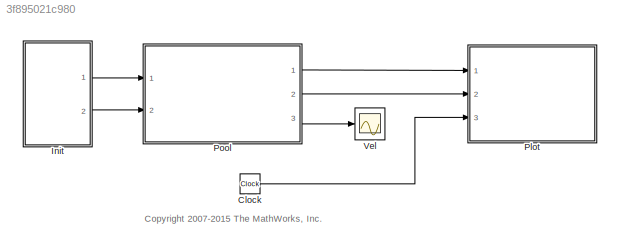
MODEL slx_3f895021c980
KIND model
CONFIG AbsTol = auto
CONFIG EnableMultiTasking = on
CONFIG FixedStep = auto
CONFIG MaxStep = .1
CONFIG MinStep = auto
CONFIG RelTol = 1e-3
CONFIG SampleTimeConstraint = Unconstrained
CONFIG Solver = ode45
CONFIG SolverName = ode45
CONFIG StartTime = 0.0
CONFIG StopTime = 10
WORKSPACE source: MATLAB code (in-file)
WORKSPACE kp = 100000
WORKSPACE kv = 40
WORKSPACE kfriction = 10
WORKSPACE tableLen = 44
WORKSPACE tableWidth = 22
WORKSPACE ballRadius = 1
WORKSPACE N = 16
BLOCK [Clock] Clock
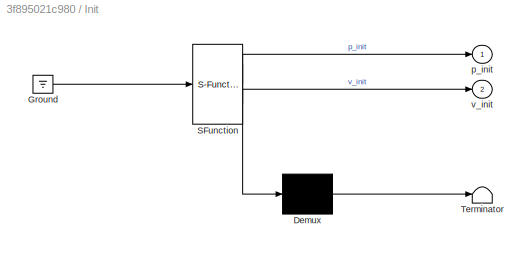
BLOCK [SubSystem] Init
  ErrorFcn = Stateflow.Translate.translate
  PermitHierarchicalResolution = ExplicitOnly
  Ports = [0, 2]
  RequestExecContextInheritance = off
  SFBlockType = Chart
  TreatAsAtomicUnit = on
  Variant = off
BLOCK [Demux] Init/ Demux 
  Outputs = 1
  Ports = [1, 1]
BLOCK [Ground] Init/ Ground 
BLOCK [S-Function] Init/ SFunction 
  EnableBusSupport = off
  FunctionName = sf_sfun
  Parameters = N
  PortCounts = [1 3]
  Ports = [1, 3]
  SFcnIsStateOwnerBlock = off
  SFunctionDeploymentMode = off
  Tag = Stateflow S-Function sf_pool 3
BLOCK [Terminator] Init/ Terminator 
BLOCK [Outport] Init/p_init
  IconDisplay = Port number
BLOCK [Outport] Init/v_init
  IconDisplay = Port number
  Port = 2
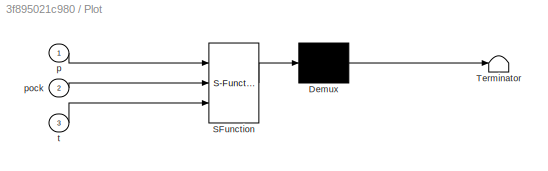
BLOCK [SubSystem] Plot
  ErrorFcn = Stateflow.Translate.translate
  PermitHierarchicalResolution = ExplicitOnly
  Ports = [3]
  RequestExecContextInheritance = off
  SFBlockType = MATLAB Function
  TreatAsAtomicUnit = on
  Variant = off
BLOCK [Demux] Plot/ Demux 
  Outputs = 1
  Ports = [1, 1]
BLOCK [S-Function] Plot/ SFunction 
  EnableBusSupport = off
  FunctionName = sf_sfun
  PortCounts = [3 1]
  Ports = [3, 1]
  SFcnIsStateOwnerBlock = off
  SFunctionDeploymentMode = off
  Tag = Stateflow S-Function sf_pool 2
BLOCK [Terminator] Plot/ Terminator 
BLOCK [Inport] Plot/p
  IconDisplay = Port number
BLOCK [Inport] Plot/pock
  IconDisplay = Port number
  Port = 2
BLOCK [Inport] Plot/t
  IconDisplay = Port number
  Port = 3
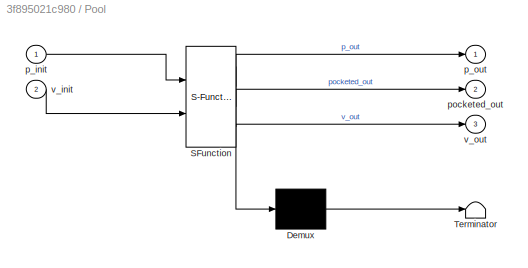
BLOCK [SubSystem] Pool
  ErrorFcn = Stateflow.Translate.translate
  PermitHierarchicalResolution = ExplicitOnly
  Ports = [2, 3]
  RequestExecContextInheritance = off
  SFBlockType = Chart
  TreatAsAtomicUnit = on
  Variant = off
BLOCK [Demux] Pool/ Demux 
  Outputs = 1
  Ports = [1, 1]
BLOCK [S-Function] Pool/ SFunction 
  EnableBusSupport = off
  FunctionName = sf_sfun
  Parameters = N,ballRadius,kfriction,kp,kv,tableLen,tableWidth
  PortCounts = [2 4]
  Ports = [2, 4]
  SFcnIsStateOwnerBlock = off
  SFunctionDeploymentMode = off
  Tag = Stateflow S-Function sf_pool 1
BLOCK [Terminator] Pool/ Terminator 
BLOCK [Inport] Pool/p_init
  IconDisplay = Port number
BLOCK [Outport] Pool/p_out
  IconDisplay = Port number
BLOCK [Outport] Pool/pocketed_out
  IconDisplay = Port number
  Port = 2
BLOCK [Inport] Pool/v_init
  IconDisplay = Port number
  Port = 2
BLOCK [Outport] Pool/v_out
  IconDisplay = Port number
  Port = 3
BLOCK [Scope] Vel
  NumInputPorts = 1
  Ports = [1]
  ScopeSpecificationString = Simulink.scopes.TimeScopeBlockCfg('CurrentConfiguration', extmgr.ConfigurationSet(extmgr.Configuration('Core','General UI',true),extmgr.Configuration('Core','Source UI',true),extmgr.Configuration('Sources','WiredSimulink',true,'DataLoggingSaveFormat','StructureWithTime','DataLoggingLimitDataPoints',true,'DataLoggingDecimation','1','DataLoggingDecimateData',true),extmgr.Configuration('Visuals','Tim...<+891ch>
ANNOTATION (root): <copyright redacted>
LINE Clock:1 -> Plot:3
LINE Init:1 -> Pool:1
LINE Init:2 -> Pool:2
LINE Pool:1 -> Plot:1
LINE Pool:2 -> Plot:2
LINE Pool:3 -> Vel:1
CHART Pool states=13 transitions=5
  STATE_LABEL 'TotalDynamics\ndu:\n  % derivatives\n  p_dot = v;\n  v_dot = frictionForce() + interactionForce();\n  % chart outputs\n  p_out = p;\n  v_out = v;\n  pocketed_out = pocketed;'
  STATE_LABEL 'initBalls'
  STATE_LABEL 'SCRIPT:\nfunction initBalls\n\np = p_init;\nv = v_init;\n\n% x_off = 20;\n% y_off = 0;\n% n = 1;\n% for i=1:5\n%     for j=1:i\n%         p(n,1) = x_off;\n%         p(n,2) = y_off + (j-1)*2*ballRadius;\n%         n = n + 1;\n%     end\n%     x_off = x_off + 2*ballRadius*cos(pi/6);\n%     y_off = y_off - 2*ballRadius*sin(pi/6);\n% end\n% \n% p(n,1) = initXPos;\n% p(n,2) = initYPos;\n% \n% v = zeros(N,2);\n% v(n,1) = init...<+141ch>'
  STATE_LABEL 'f = interactionForce'
  STATE_LABEL 'SCRIPT:\nfunction f = interactionForce\n% given the positions and velocities of all the balls, we want to find out \n% the interaction force between the various balls\n\nf = zeros(N,2);\nfor i=1:(N-1)\n    if pocketed(i)\n        continue;\n    end\n    for j=(i+1):N\n        if pocketed(j)\n            continue;\n        end\n        if ball_interaction(i,j)\n            dp = p(i,:)-p(j,:);\n            dv = v(i...<+191ch>'
  STATE_LABEL 'yn = isAnyBallOutOfBounds'
  STATE_LABEL 'SCRIPT:\nfunction yn = isAnyBallOutOfBounds\nfor i=1:N\n    if p(i,1) < -tableLen || p(i,1) > tableLen || ...\n       p(i,2) < -tableWidth || p(i,2) > tableWidth\n        yn = true;\n        return;\n    end\nend\nyn = false;'
  STATE_LABEL 'balli = getBallInteraction'
  STATE_LABEL 'SCRIPT:\nfunction balli = getBallInteraction\n\nballi = false(N,N);\nfor i=1:(N-1)\n    for j=(i+1):N\n        if norm(p(i,:)-p(j,:)) < 2*ballRadius\n            balli(i,j) = true;\n        else\n            balli(i,j) = false;\n        end\n    end\nend\n'
  STATE_LABEL 'yn = hasBallInteractionChanged'
  STATE_LABEL 'SCRIPT:\nfunction yn = hasBallInteractionChanged\nif ~isequal(ball_interaction, getBallInteraction())\n    yn = 1;\nelse\n    yn = 0;\nend'
  STATE_LABEL 'resetBallsPosAndVel'
  STATE_LABEL 'SCRIPT:\nfunction resetBallsPosAndVel\n\nfor i=1:N\n    if p(i,1) < -tableLen\n        p(i,1) = -2*tableLen-p(i,1);\n        v(i,1) = -0.8*v(i,1);\n        v(i,2) = 0.8*v(i,2);\n    elseif p(i,1) > tableLen\n        p(i,1) = 2*tableLen-p(i,1);\n        v(i,1) = -0.8*v(i,1);\n        v(i,2) = 0.8*v(i,2);\n    end\n    if p(i,2) < -tableWidth\n        p(i,2) = -2*tableWidth-p(i,2);\n        v(i,2) = -0.8*v(i,2);\n ...<+167ch>'
  STATE_LABEL 'yn = isAnyBallNewlyPocketed'
  STATE_LABEL 'SCRIPT:\nfunction yn = isAnyBallNewlyPocketed\n \nfor i=1:N\n    if pocketed(i)\n        continue;\n    end\n    if nearHole(p(i,:))\n        yn = 1;\n        return\n    end\nend\nyn = 0;\n\n'
  STATE_LABEL 'yn = isAnyBallGoingToStop'
  STATE_LABEL "SCRIPT:\nfunction yn = isAnyBallGoingToStop\n\nfor i=1:N\n    if v(i,:)*last_vel(i,:)' < 0\n        yn = 1;\n        return\n    end\nend\nyn = 0;"
  STATE_LABEL 'yn = nearHole(pp)'
  STATE_LABEL 'SCRIPT:\nfunction yn = nearHole(pp)\n% first reflect the ball into the upper right quadrant. The check becomes\n% slightly faster then.\npp = abs(pp);\nif norm(pp-[tableLen, tableWidth]) < 1.2*ballRadius\n    yn = true;\nelseif norm(pp-[0, tableWidth]) < ballRadius\n    yn = true;\nelse\n    yn = false;\nend'
  STATE_LABEL 'pocketNewBalls'
  STATE_LABEL 'SCRIPT:\nfunction pocketNewBalls\nfor i=1:N\n    if pocketed(i)\n        continue;\n    end\n    if nearHole(p(i,:))\n        pocketed(i) = true;\n        v(i,:) = zeros(1,2);\n    end\nend'
  STATE_LABEL 'updateStopFlags'
  STATE_LABEL 'SCRIPT:\nfunction updateStopFlags\n\nfor i=1:N\n    if norm(v(i,:)) < 1e-3\n        stopped(i) = true;\n    elseif norm(v(i,:)) > 1e-3\n        stopped(i) = false;\n    end\nend\nlast_vel = v;'
  STATE_LABEL 'f = frictionForce'
  STATE_LABEL 'SCRIPT:\nfunction f = frictionForce\n% This function calculates the forces on the balls due to friction from the\n% table. We use a simple constant friction force model between the ball\n% and the table.\n\nf = zeros(N,2);\nfor i=1:N\n    if stopped(i)\n       continue\n    else\n        % Note that we are using last_vel to calculate the direction of \n        % the friction force because we are guaranteed th...<+371ch>'
CHART Plot states=1 transitions=1
  STATE_LABEL 'eML_blk_kernel()'
  STATE_LABEL "SCRIPT:\nfunction animate(p, pock, t)\n%#codegen\n\ncoder.extrinsic('sf_pool_plotter', 'sf_pool_plotter_3d');\n\nsf_pool_plotter('draw', p, pock, t);"
CHART Init states=2 transitions=1
  STATE_LABEL 'init'
  STATE_LABEL "SCRIPT:\nfunction init\ncoder.extrinsic('sf_pool_plotter_3d', 'sf_pool_plotter');\n\n[p_init, v_init] = sf_pool_plotter('init', zeros(N,2), zeros(N,2));"
  STATE_LABEL 'A'
